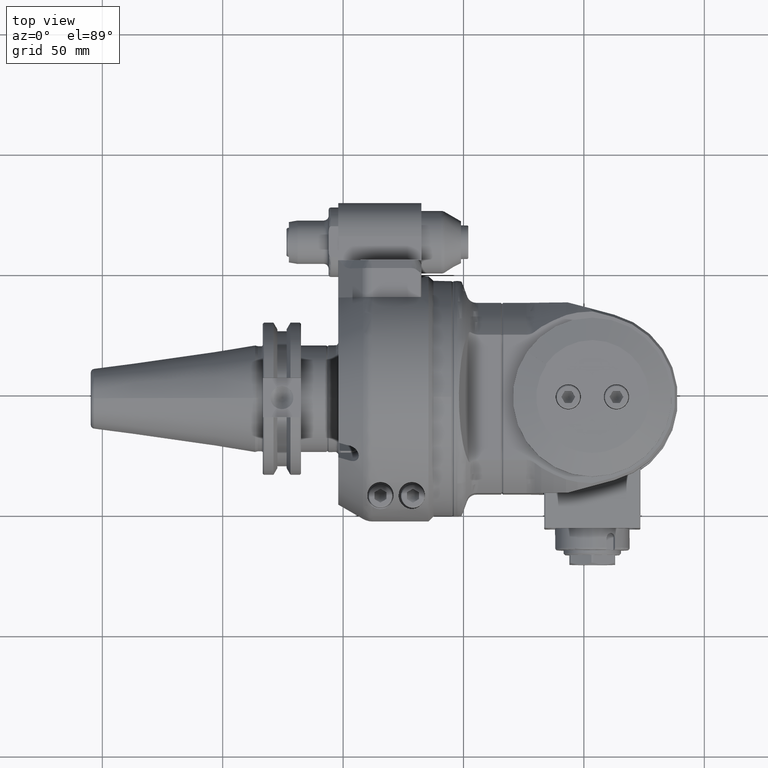
[diagram: clean part render]
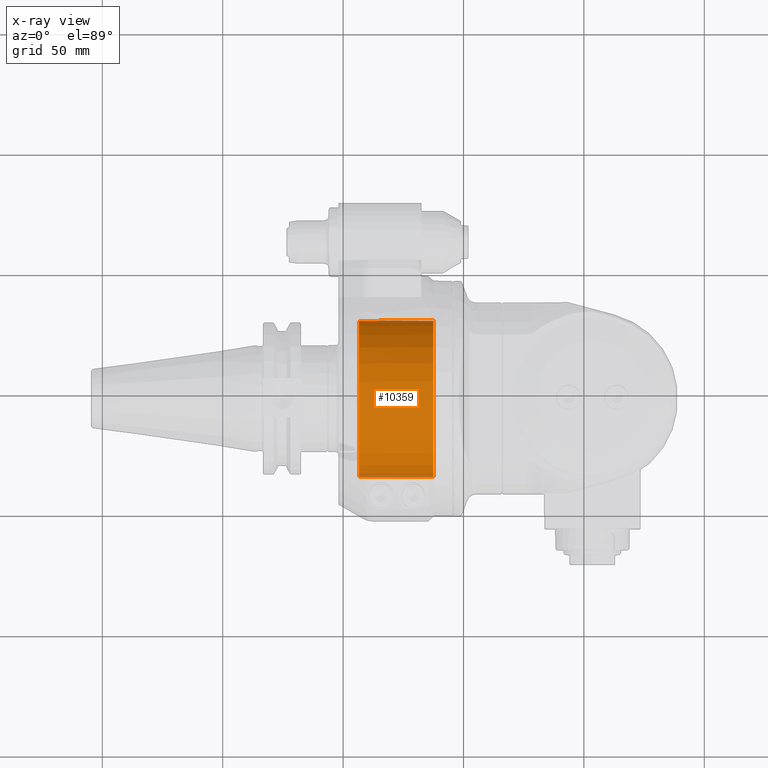
[diagram: x-ray — body ghosted, one internal face saturated and labeled with its STEP entity id]
A machine part, top view, then the same camera in x-ray: the body is ghosted and one INTERNAL B-rep face — a face not visible from any outside direction — is saturated and labeled: STEP entity #10359.
In plain terms, the highlighted cylindrical surface (partial cylindrical patch) has radius 32.5 mm, axis along (1, 0, 0).
Its self-contained STEP definition (entity closure, byte-faithful):
#137=CYLINDRICAL_SURFACE('',#11309,32.5);
#719=CIRCLE('',#11308,32.5);
#720=CIRCLE('',#11310,32.5);
#721=CIRCLE('',#11311,32.5);
#722=CIRCLE('',#11312,32.5);
#1276=FACE_OUTER_BOUND('',#1958,.T.);
#1958=EDGE_LOOP('',(#8280,#8281,#8282,#8283,#8284,#8285,#8286,#8287));
#2672=LINE('',#17345,#3389);
#2677=LINE('',#17383,#3394);
#2678=LINE('',#17387,#3395);
#2679=LINE('',#17390,#3396);
#3389=VECTOR('',#13397,31.);
#3394=VECTOR('',#13414,31.);
#3395=VECTOR('',#13417,8.5);
#3396=VECTOR('',#13420,8.5);
#4623=VERTEX_POINT('',#17342);
#4624=VERTEX_POINT('',#17344);
#4631=VERTEX_POINT('',#17376);
#4632=VERTEX_POINT('',#17380);
#4633=VERTEX_POINT('',#17382);
#4634=VERTEX_POINT('',#17384);
#4635=VERTEX_POINT('',#17386);
#4636=VERTEX_POINT('',#17388);
#5916=EDGE_CURVE('',#4624,#4623,#2672,.T.);
#5925=EDGE_CURVE('',#4631,#4623,#719,.T.);
#5926=EDGE_CURVE('',#4624,#4632,#720,.T.);
#5927=EDGE_CURVE('',#4631,#4633,#2677,.T.);
#5928=EDGE_CURVE('',#4634,#4633,#721,.T.);
#5929=EDGE_CURVE('',#4634,#4635,#2678,.T.);
#5930=EDGE_CURVE('',#4636,#4635,#722,.T.);
#5931=EDGE_CURVE('',#4636,#4632,#2679,.T.);
#8280=ORIENTED_EDGE('',*,*,#5926,.F.);
#8281=ORIENTED_EDGE('',*,*,#5916,.T.);
#8282=ORIENTED_EDGE('',*,*,#5925,.F.);
#8283=ORIENTED_EDGE('',*,*,#5927,.T.);
#8284=ORIENTED_EDGE('',*,*,#5928,.F.);
#8285=ORIENTED_EDGE('',*,*,#5929,.T.);
#8286=ORIENTED_EDGE('',*,*,#5930,.F.);
#8287=ORIENTED_EDGE('',*,*,#5931,.T.);
#10359=ADVANCED_FACE('',(#1276),#137,.F.);
#11308=AXIS2_PLACEMENT_3D('',#17378,#13408,#13409);
#11309=AXIS2_PLACEMENT_3D('',#17379,#13410,#13411);
#11310=AXIS2_PLACEMENT_3D('',#17381,#13412,#13413);
#11311=AXIS2_PLACEMENT_3D('',#17385,#13415,#13416);
#11312=AXIS2_PLACEMENT_3D('',#17389,#13418,#13419);
#13397=DIRECTION('',(1.,0.,0.));
#13408=DIRECTION('center_axis',(-1.,0.,0.));
#13409=DIRECTION('ref_axis',(0.,-0.998934343430642,0.0461538461538519));
#13410=DIRECTION('center_axis',(1.,0.,0.));
#13411=DIRECTION('ref_axis',(0.,1.,-1.22464679914735E-16));
#13412=DIRECTION('center_axis',(1.,0.,0.));
#13413=DIRECTION('ref_axis',(0.,-0.998934343430642,-0.0461538461538519));
#13414=DIRECTION('',(-1.,0.,0.));
#13415=DIRECTION('center_axis',(1.,0.,0.));
#13416=DIRECTION('ref_axis',(0.,0.990367811657303,0.1384615384615));
#13417=DIRECTION('',(1.,0.,0.));
#13418=DIRECTION('center_axis',(1.,0.,0.));
#13419=DIRECTION('ref_axis',(0.,1.,0.));
#13420=DIRECTION('',(-1.,0.,0.));
#17342=CARTESIAN_POINT('',(-12.,-32.4653661615,-1.5));
#17344=CARTESIAN_POINT('',(-43.,-32.4653661615,-1.5));
#17345=CARTESIAN_POINT('',(-43.,-32.4653661615,-1.5));
#17376=CARTESIAN_POINT('',(-12.,-32.4653661615,1.5));
#17378=CARTESIAN_POINT('Origin',(-12.,0.,0.));
#17379=CARTESIAN_POINT('Origin',(-28.5,0.,0.));
#17380=CARTESIAN_POINT('',(-43.,32.18695387886,-4.5));
#17381=CARTESIAN_POINT('Origin',(-43.,0.,0.));
#17382=CARTESIAN_POINT('',(-43.,-32.4653661615,1.5));
#17383=CARTESIAN_POINT('',(-12.,-32.4653661615,1.5));
#17384=CARTESIAN_POINT('',(-43.,32.18695387886,4.5));
#17385=CARTESIAN_POINT('Origin',(-43.,0.,0.));
#17386=CARTESIAN_POINT('',(-34.5,32.18695387886,4.5));
#17387=CARTESIAN_POINT('',(-43.,32.18695387886,4.5));
#17388=CARTESIAN_POINT('',(-34.5,32.18695387886,-4.5));
#17389=CARTESIAN_POINT('Origin',(-34.5,0.,0.));
#17390=CARTESIAN_POINT('',(-34.5,32.18695387886,-4.5));